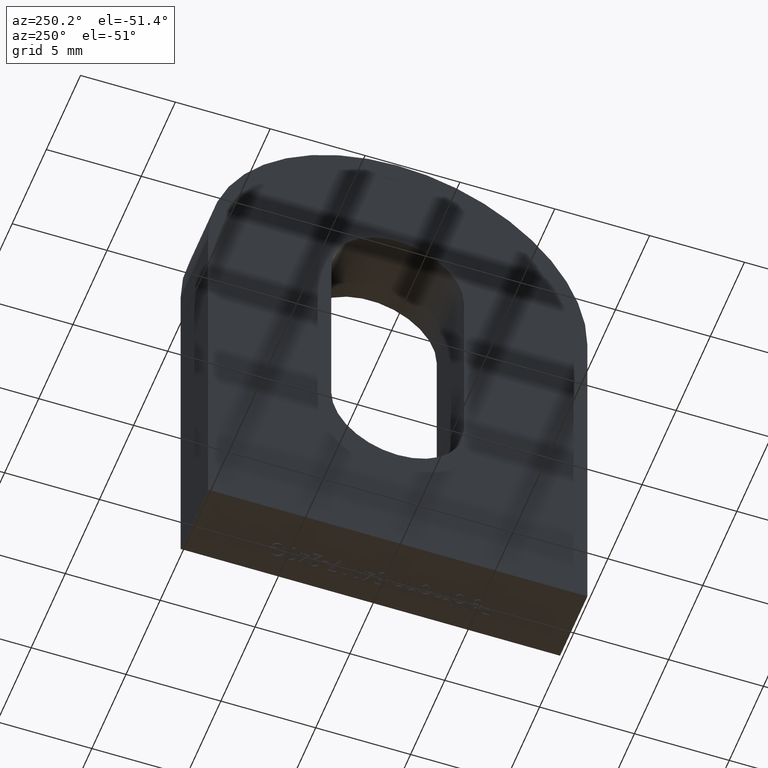
[diagram: clean part render]
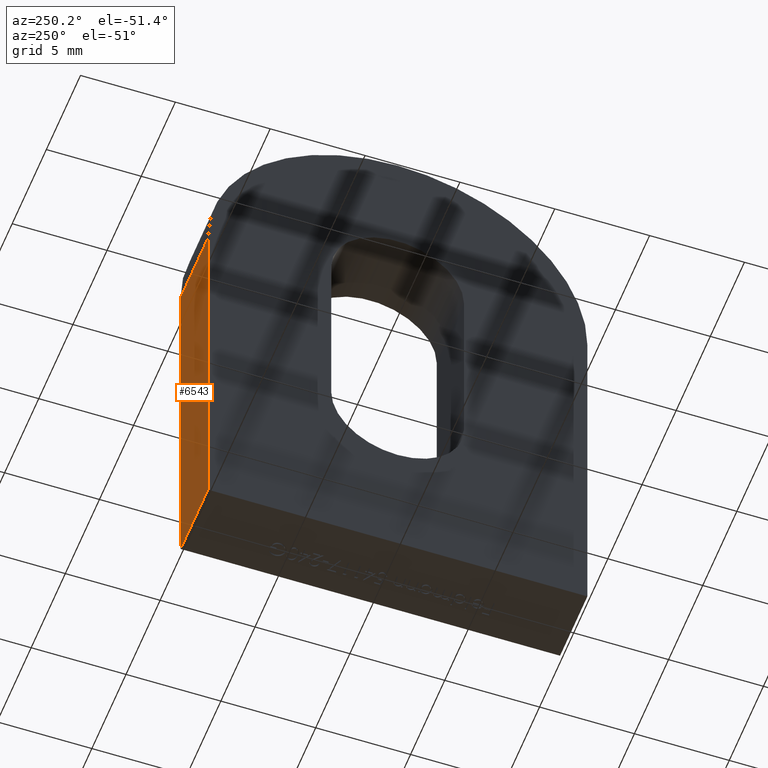
[diagram: same view with one face highlighted and labeled with its STEP entity id]
A machine part, auxiliary view. The second image highlights one B-rep face of the part: STEP entity #6543.
In plain terms, the highlighted planar face has unit normal (-0, 1, 0).
Its self-contained STEP definition (entity closure, byte-faithful):
#113 = EDGE_CURVE ( 'NONE', #8913, #2743, #9626, .T. ) ;
#611 = CARTESIAN_POINT ( 'NONE',  ( 2.000000000000000000, 10.00000000000000000, 19.99999999999999600 ) ) ;
#867 = CARTESIAN_POINT ( 'NONE',  ( 2.000000000000000000, 10.00000000000000000, 19.99999999999999600 ) ) ;
#1542 = DIRECTION ( 'NONE',  ( -0.0000000000000000000, 1.000000000000000000, 0.0000000000000000000 ) ) ;
#2496 = DIRECTION ( 'NONE',  ( 0.0000000000000000000, -0.0000000000000000000, 1.000000000000000000 ) ) ;
#2515 = EDGE_CURVE ( 'NONE', #4422, #6538, #11577, .T. ) ;
#2743 = VERTEX_POINT ( 'NONE', #7854 ) ;
#2943 = VECTOR ( 'NONE', #6840, 1000.000000000000000 ) ;
#3235 = VECTOR ( 'NONE', #6443, 1000.000000000000000 ) ;
#3475 = ORIENTED_EDGE ( 'NONE', *, *, #9904, .F. ) ;
#3553 = CARTESIAN_POINT ( 'NONE',  ( -2.000000000000000000, 10.00000000000000000, 19.99999999999999600 ) ) ;
#3833 = ORIENTED_EDGE ( 'NONE', *, *, #113, .F. ) ;
#4422 = VERTEX_POINT ( 'NONE', #867 ) ;
#4616 = CARTESIAN_POINT ( 'NONE',  ( 2.000000000000000000, 10.00000000000000000, 19.99999999999999600 ) ) ;
#5763 = ORIENTED_EDGE ( 'NONE', *, *, #10013, .T. ) ;
#6220 = DIRECTION ( 'NONE',  ( 0.0000000000000000000, 0.0000000000000000000, -1.000000000000000000 ) ) ;
#6443 = DIRECTION ( 'NONE',  ( -1.000000000000000000, -0.0000000000000000000, -0.0000000000000000000 ) ) ;
#6538 = VERTEX_POINT ( 'NONE', #9655 ) ;
#6543 = ADVANCED_FACE ( 'NONE', ( #6859 ), #7911, .T. ) ;
#6558 = CARTESIAN_POINT ( 'NONE',  ( 2.000000000000000000, 10.00000000000000000, 19.99999999999999600 ) ) ;
#6840 = DIRECTION ( 'NONE',  ( -1.000000000000000000, -0.0000000000000000000, -0.0000000000000000000 ) ) ;
#6859 = FACE_OUTER_BOUND ( 'NONE', #10302, .T. ) ;
#7768 = LINE ( 'NONE', #9407, #2943 ) ;
#7854 = CARTESIAN_POINT ( 'NONE',  ( -2.000000000000000000, 10.00000000000000000, -3.061616997868383000E-015 ) ) ;
#7911 = PLANE ( 'NONE',  #9726 ) ;
#8365 = DIRECTION ( 'NONE',  ( 0.0000000000000000000, 0.0000000000000000000, -1.000000000000000000 ) ) ;
#8886 = LINE ( 'NONE', #4616, #3235 ) ;
#8913 = VERTEX_POINT ( 'NONE', #10419 ) ;
#9017 = VECTOR ( 'NONE', #8365, 1000.000000000000000 ) ;
#9407 = CARTESIAN_POINT ( 'NONE',  ( 2.000000000000000000, 10.00000000000000000, -3.061616997868383000E-015 ) ) ;
#9626 = LINE ( 'NONE', #3553, #10475 ) ;
#9655 = CARTESIAN_POINT ( 'NONE',  ( 2.000000000000000000, 10.00000000000000000, -3.061616997868383000E-015 ) ) ;
#9726 = AXIS2_PLACEMENT_3D ( 'NONE', #611, #1542, #2496 ) ;
#9904 = EDGE_CURVE ( 'NONE', #4422, #8913, #8886, .T. ) ;
#10013 = EDGE_CURVE ( 'NONE', #6538, #2743, #7768, .T. ) ;
#10302 = EDGE_LOOP ( 'NONE', ( #3833, #3475, #10468, #5763 ) ) ;
#10419 = CARTESIAN_POINT ( 'NONE',  ( -2.000000000000000000, 10.00000000000000000, 19.99999999999999600 ) ) ;
#10468 = ORIENTED_EDGE ( 'NONE', *, *, #2515, .T. ) ;
#10475 = VECTOR ( 'NONE', #6220, 1000.000000000000000 ) ;
#11577 = LINE ( 'NONE', #6558, #9017 ) ;